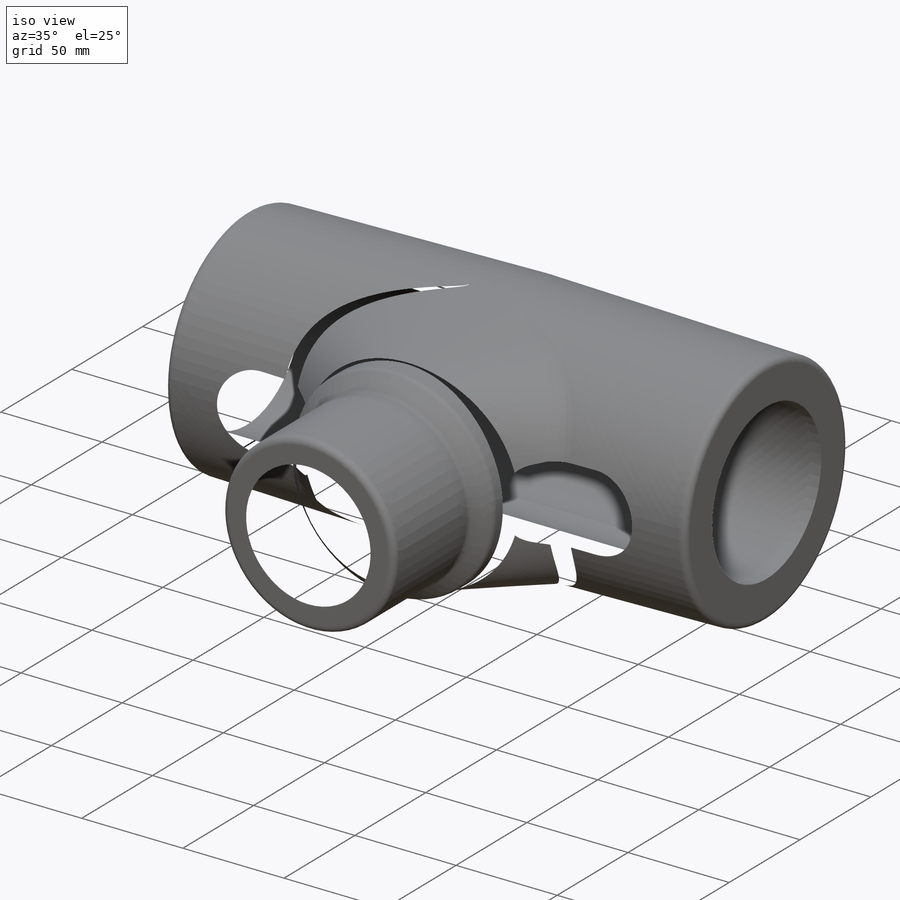
[diagram: iso view]
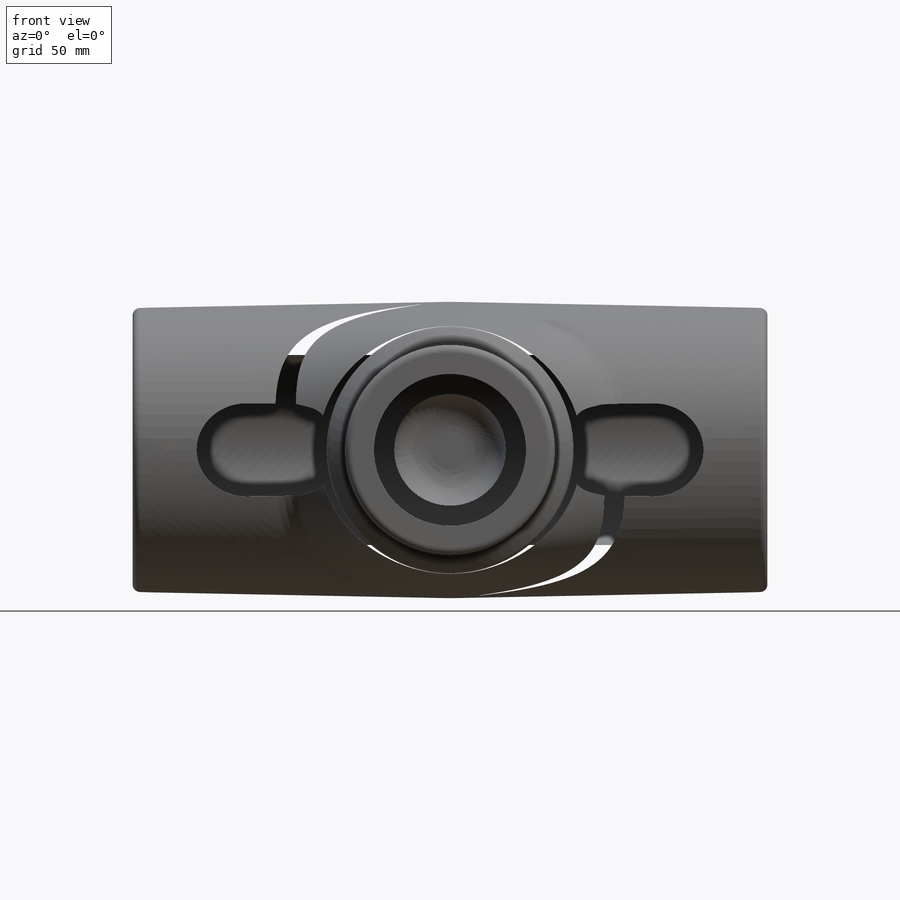
[diagram: front view]
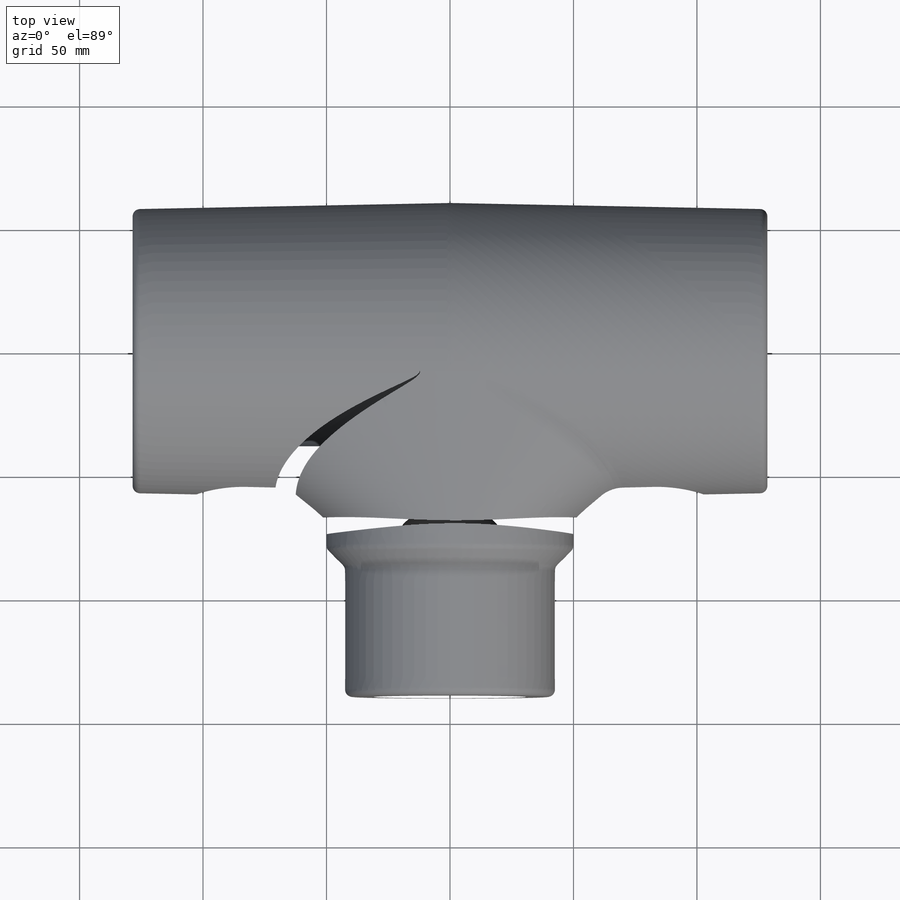
[diagram: top view]
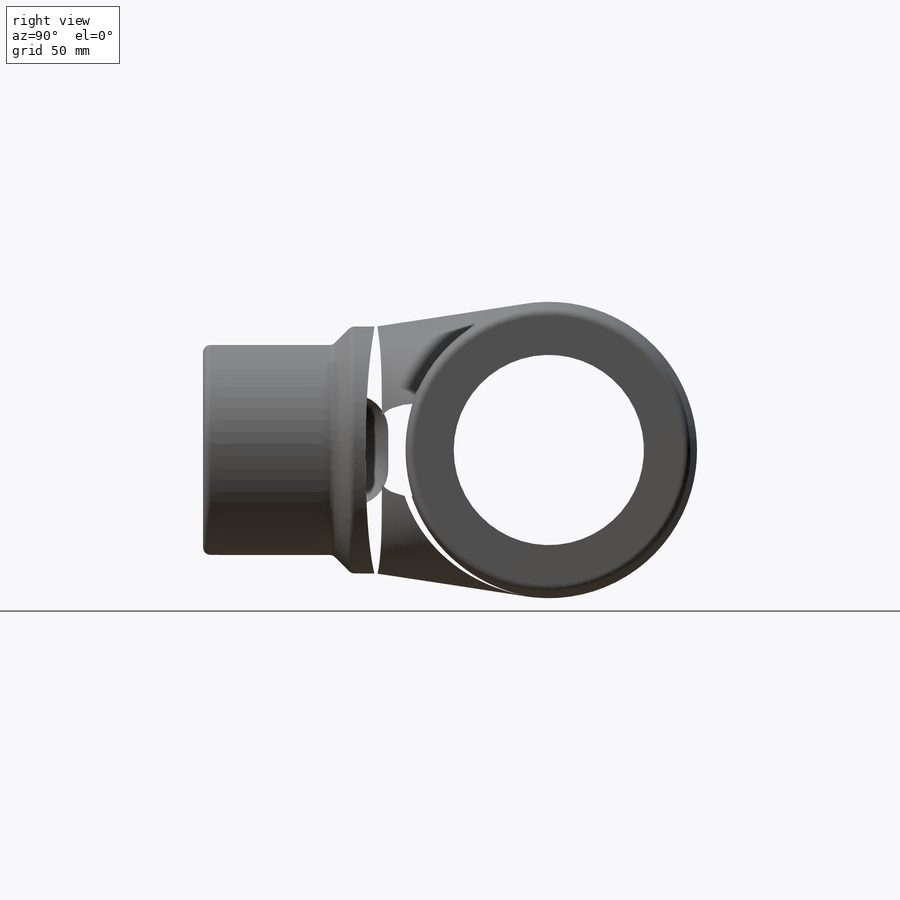
[diagram: right view]
SOLIDWORKS PART (.sldprt)
format: sldprt  version: not decoded by parser v0  size: 764,416 bytes
history: native  units: mm
features: sketch x9, fillet x6, plane x3, revolve x2, cut_revolve x2, material x1, extrude x1 (+14 scaffold rows collapsed)
feature tree (38):
  scaffold x14  (default folders/planes/origin — collapsed)
  material  "Material <not specified>"
  sketch  "Sketch1"  dims[c1.D2=3.0mm c1.D6=50.0mm c1.D1=133.0mm c2.D2=95.0mm c2.D3=44.75mm c2.D4=120.0mm c2.D5=115.0mm c2.D6=40.5mm c3.D3=77.0mm c3.D7=41.0mm c3.D1=257.0mm c4.D3=77.0mm c4.D6=~220.189404mm c5.D6=2.0deg]
  revolve  "Base-Revolve"  Angle=360deg
  plane  "Plane5"  Offset=70mm cosmosAttributesReplaced=1 cosmosVersionNumber=0mm
  fillet  "R10 rundinger"  Radius=10mm
  sketch  "Hjælpesketch1"  dims[D1=100.0mm]
  sketch  "Hjælpesketch2"  dims[c1.D1=100.0mm c1.D2=50.0mm c2.D2=35.0deg]
  plane  "Plane6"
  sketch  "Sketch10"  dims[D1=140.0mm]
  sketch  "Sketch11"  dims[D1=100.0mm]
  sketch  "Sketch15"  dims[c1.D1=77.0mm c1.D2=~150.438847mm c2.D2=1.0deg]
  cut_revolve  "Gennemgående hul i nav"  Angle=360deg
  sketch  "Sketch13"  dims[c1.D5=20.0mm c1.D6=3.0mm c1.D10=3.0mm c1.D1=140.0mm c1.D2=~21.370198mm c2.D2=5.0deg c2.D3=55.0mm c2.D4=60.0mm c2.D7=85.0mm c2.D8=~26.081923mm c3.D8=45.0deg c3.D9=60.0mm]
  revolve  "Revolve1"  Angle=360deg
  sketch  "Sketch16"  dims[c1.D4=15.0mm c1.D1=75.0mm c1.D2=~81.190844mm c2.D2=5.0deg c2.D3=56.0mm]
  cut_revolve  "Cut-Revolve1"  Angle=360deg
  fillet  "Fillet20"  Radius=3mm
  fillet  "Fillet17"  Radius=15mm
  plane  "Hjælpeplan - knaster"  Offset=68mm
  sketch  "Sketch14"  dims[D1=11.0mm D2=165.0mm D3=90.0mm]
  extrude  "Knaster for skærm"  [1 undecoded]
  fillet  "Fillet18"  Radius=3mm
  fillet  "Fillet19"  Radius=8mm
  fillet  "Fillet8"  Radius=8mm
decode coverage: 19 of 20 modeling features carry decoded parameters
note: ~ marks probable driven/reference dimensions
note: 1 parameter value undecoded
note: suppression state not decoded; provenance and decode notes live in map.json
